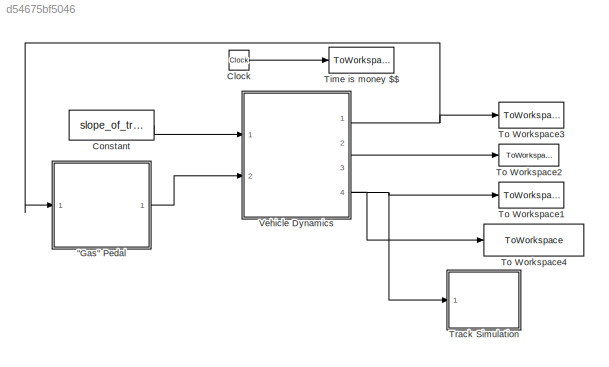
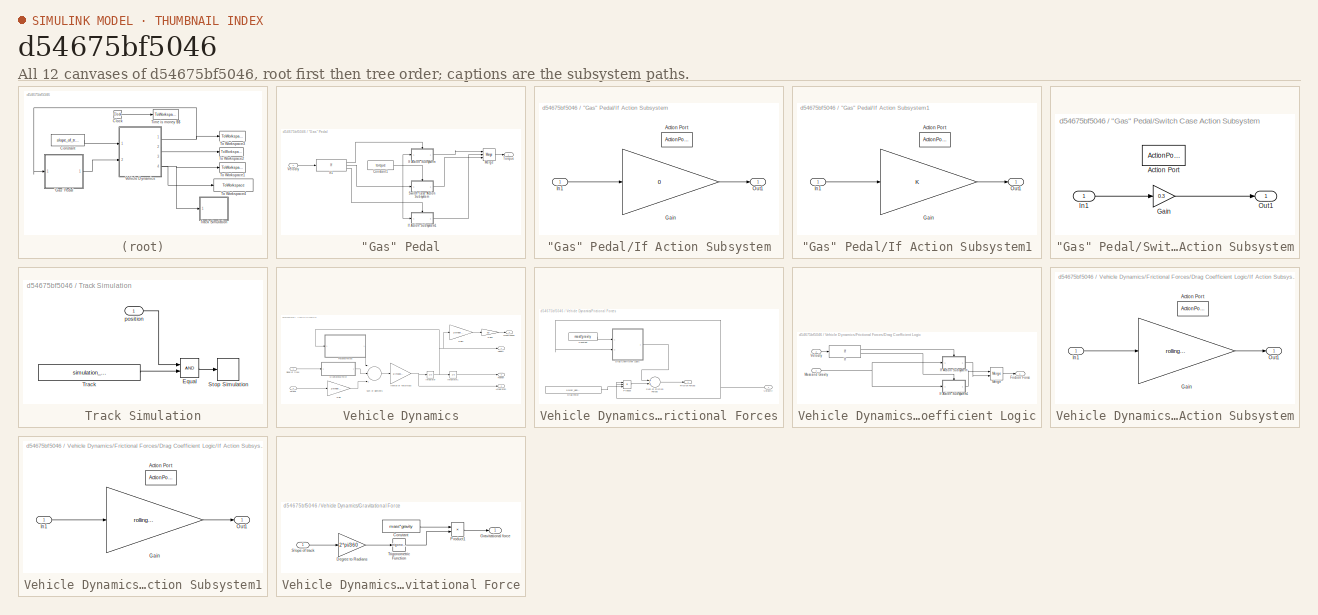
[diagram: thumbnail index - all 12 canvases of the model, root first then tree order]
MODEL slx_d54675bf5046
KIND model
CONFIG AbsTol = auto
CONFIG EnableMultiTasking = off
CONFIG FixedStep = auto
CONFIG MaxStep = 1e-04
CONFIG MinStep = auto
CONFIG RelTol = 1e-4
CONFIG SampleTimeConstraint = Unconstrained
CONFIG Solver = VariableStepAuto
CONFIG SolverName = VariableStepAuto
CONFIG StartTime = 0.0
CONFIG StopTime = 100
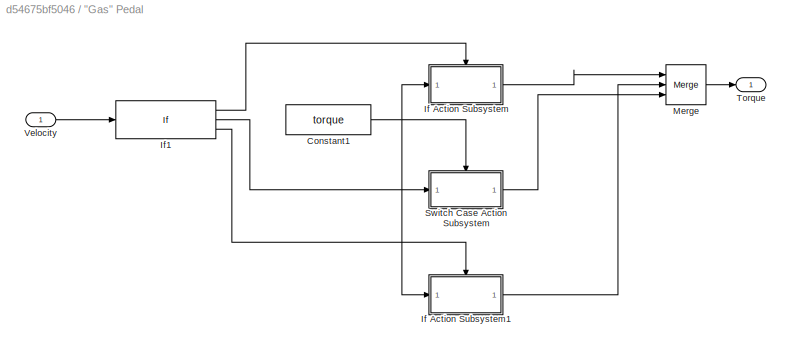
BLOCK [SubSystem] "Gas" Pedal
  Ports = [1, 1]
  RequestExecContextInheritance = off
BLOCK [Constant] "Gas" Pedal/Constant1
  Value = torque
BLOCK [SubSystem] "Gas" Pedal/If Action Subsystem
  Ports = [1, 1, 0, 0, 0, 0, 0, 1]
  RequestExecContextInheritance = off
  TreatAsAtomicUnit = on
BLOCK [ActionPort] "Gas" Pedal/If Action Subsystem/Action Port
  ActionPortLabel = if(u1 > 5.55)
BLOCK [Gain] "Gas" Pedal/If Action Subsystem/Gain
  Gain = 0
  OutDataTypeStr = Inherit: Inherit via internal rule
  ParamDataTypeStr = Inherit: Inherit via internal rule
  SaturateOnIntegerOverflow = off
BLOCK [Inport] "Gas" Pedal/If Action Subsystem/In1
  IconDisplay = Port number
BLOCK [Outport] "Gas" Pedal/If Action Subsystem/Out1
  IconDisplay = Port number
BLOCK [SubSystem] "Gas" Pedal/If Action Subsystem1
  Ports = [1, 1, 0, 0, 0, 0, 0, 1]
  RequestExecContextInheritance = off
  TreatAsAtomicUnit = on
BLOCK [ActionPort] "Gas" Pedal/If Action Subsystem1/Action Port
  ActionPortLabel = else
BLOCK [Gain] "Gas" Pedal/If Action Subsystem1/Gain
  OutDataTypeStr = Inherit: Inherit via internal rule
  ParamDataTypeStr = Inherit: Inherit via internal rule
  SaturateOnIntegerOverflow = off
BLOCK [Inport] "Gas" Pedal/If Action Subsystem1/In1
  IconDisplay = Port number
BLOCK [Outport] "Gas" Pedal/If Action Subsystem1/Out1
  IconDisplay = Port number
BLOCK [If] "Gas" Pedal/If1
  ElseIfExpressions = u1 <= 5.55
  IfExpression = u1 > 5.55
  Ports = [1, 3]
  ZeroCross = off
BLOCK [Merge] "Gas" Pedal/Merge
  Inputs = 3
  Ports = [3, 1]
BLOCK [SubSystem] "Gas" Pedal/Switch Case Action Subsystem
  Ports = [1, 1, 0, 0, 0, 0, 0, 1]
  RequestExecContextInheritance = off
  TreatAsAtomicUnit = on
BLOCK [ActionPort] "Gas" Pedal/Switch Case Action Subsystem/Action Port
BLOCK [Gain] "Gas" Pedal/Switch Case Action Subsystem/Gain
  Gain = 0.3
  OutDataTypeStr = Inherit: Inherit via internal rule
  ParamDataTypeStr = Inherit: Inherit via internal rule
  SaturateOnIntegerOverflow = off
BLOCK [Inport] "Gas" Pedal/Switch Case Action Subsystem/In1
  IconDisplay = Port number
BLOCK [Outport] "Gas" Pedal/Switch Case Action Subsystem/Out1
  IconDisplay = Port number
BLOCK [Outport] "Gas" Pedal/Torque
  IconDisplay = Port number
BLOCK [Inport] "Gas" Pedal/Velocity
  IconDisplay = Port number
BLOCK [Clock] Clock
BLOCK [Constant] Constant
  Value = slope_of_track
BLOCK [ToWorkspace] Time is money $$
  FixptAsFi = on
  MaxDataPoints = inf
  Ports = [1]
  SampleTime = -1
  VariableName = time
BLOCK [ToWorkspace] To Workspace1
  FixptAsFi = on
  MaxDataPoints = inf
  Ports = [1]
  SampleTime = -1
  VariableName = position
BLOCK [ToWorkspace] To Workspace2
  FixptAsFi = on
  MaxDataPoints = inf
  Ports = [1]
  SampleTime = -1
  VariableName = acceleration
BLOCK [ToWorkspace] To Workspace3
  FixptAsFi = on
  MaxDataPoints = inf
  Ports = [1]
  SampleTime = -1
  VariableName = velocity
BLOCK [ToWorkspace] To Workspace4
  FixptAsFi = on
  MaxDataPoints = inf
  Ports = [1]
  SampleTime = -1
  VariableName = wheel_speed_rpm
BLOCK [SubSystem] Track Simulation
  Ports = [1]
  RequestExecContextInheritance = off
BLOCK [RelationalOperator] Track Simulation/Equal
  InputSameDT = off
  OutDataTypeStr = boolean
  Ports = [2, 1]
  RndMeth = Simplest
BLOCK [Stop] Track Simulation/Stop Simulation
BLOCK [Constant] Track Simulation/Track 
  Value = simulation_length_track
BLOCK [Inport] Track Simulation/position
  IconDisplay = Port number
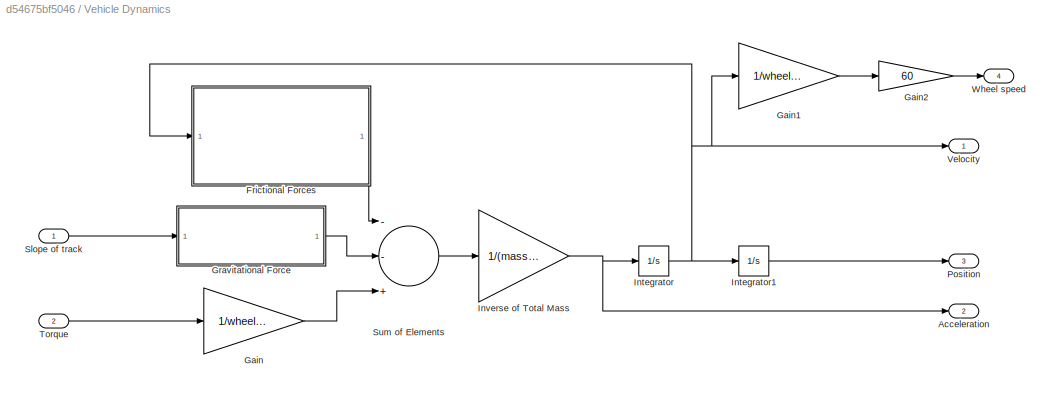
BLOCK [SubSystem] Vehicle Dynamics
  Ports = [2, 4]
  RequestExecContextInheritance = off
BLOCK [Outport] Vehicle Dynamics/Acceleration
  IconDisplay = Port number
  Port = 2
BLOCK [SubSystem] Vehicle Dynamics/Frictional Forces
  Ports = [1, 1]
  RequestExecContextInheritance = off
BLOCK [Constant] Vehicle Dynamics/Frictional Forces/Constant
  Value = mass*gravity
BLOCK [SubSystem] Vehicle Dynamics/Frictional Forces/Drag Coefficient Logic
  Ports = [2, 1]
  RequestExecContextInheritance = off
BLOCK [Outport] Vehicle Dynamics/Frictional Forces/Drag Coefficient Logic/Friction Force
  IconDisplay = Port number
BLOCK [If] Vehicle Dynamics/Frictional Forces/Drag Coefficient Logic/If
  IfExpression = u1 > 0.01
  Ports = [1, 2]
BLOCK [SubSystem] Vehicle Dynamics/Frictional Forces/Drag Coefficient Logic/If Action Subsystem
  Ports = [1, 1, 0, 0, 0, 0, 0, 1]
  RequestExecContextInheritance = off
  TreatAsAtomicUnit = on
BLOCK [ActionPort] Vehicle Dynamics/Frictional Forces/Drag Coefficient Logic/If Action Subsystem/Action Port
  ActionPortLabel = if(u1 > 0.01)
BLOCK [Gain] Vehicle Dynamics/Frictional Forces/Drag Coefficient Logic/If Action Subsystem/Gain
  Gain = rolling_resistance_coefficient_1
  OutDataTypeStr = Inherit: Inherit via internal rule
  ParamDataTypeStr = Inherit: Inherit via internal rule
  SaturateOnIntegerOverflow = off
BLOCK [Inport] Vehicle Dynamics/Frictional Forces/Drag Coefficient Logic/If Action Subsystem/In1
  IconDisplay = Port number
BLOCK [Outport] Vehicle Dynamics/Frictional Forces/Drag Coefficient Logic/If Action Subsystem/Out1
  IconDisplay = Port number
BLOCK [SubSystem] Vehicle Dynamics/Frictional Forces/Drag Coefficient Logic/If Action Subsystem1
  Ports = [1, 1, 0, 0, 0, 0, 0, 1]
  RequestExecContextInheritance = off
  TreatAsAtomicUnit = on
BLOCK [ActionPort] Vehicle Dynamics/Frictional Forces/Drag Coefficient Logic/If Action Subsystem1/Action Port
  ActionPortLabel = else
BLOCK [Gain] Vehicle Dynamics/Frictional Forces/Drag Coefficient Logic/If Action Subsystem1/Gain
  Gain = rolling_resistance_coefficient_0
  OutDataTypeStr = Inherit: Inherit via internal rule
  ParamDataTypeStr = Inherit: Inherit via internal rule
  SaturateOnIntegerOverflow = off
BLOCK [Inport] Vehicle Dynamics/Frictional Forces/Drag Coefficient Logic/If Action Subsystem1/In1
  IconDisplay = Port number
BLOCK [Outport] Vehicle Dynamics/Frictional Forces/Drag Coefficient Logic/If Action Subsystem1/Out1
  IconDisplay = Port number
BLOCK [Inport] Vehicle Dynamics/Frictional Forces/Drag Coefficient Logic/Mass and Gravity 
  IconDisplay = Port number
BLOCK [Merge] Vehicle Dynamics/Frictional Forces/Drag Coefficient Logic/Merge
  Ports = [2, 1]
BLOCK [Inport] Vehicle Dynamics/Frictional Forces/Drag Coefficient Logic/Velocity
  IconDisplay = Port number
  Port = 2
BLOCK [Constant] Vehicle Dynamics/Frictional Forces/Drag Force
  Value = 0.5*air_density*surface_area*drag_coefficient
BLOCK [Outport] Vehicle Dynamics/Frictional Forces/Firction Forces
  IconDisplay = Port number
BLOCK [Product] Vehicle Dynamics/Frictional Forces/Product
  InputSameDT = off
  Inputs = 3
  OutDataTypeStr = Inherit: Inherit via internal rule
  Ports = [3, 1]
  RndMeth = Floor
  SaturateOnIntegerOverflow = off
BLOCK [Sum] Vehicle Dynamics/Frictional Forces/Sum of Friction Forces
  InputSameDT = off
  OutDataTypeStr = Inherit: Inherit via internal rule
  Ports = [2, 1]
  SaturateOnIntegerOverflow = off
BLOCK [Inport] Vehicle Dynamics/Frictional Forces/Velocity
  IconDisplay = Port number
BLOCK [Gain] Vehicle Dynamics/Gain
  Gain = 1/wheel_radius
  OutDataTypeStr = Inherit: Inherit via internal rule
  ParamDataTypeStr = Inherit: Inherit via internal rule
  SaturateOnIntegerOverflow = off
BLOCK [Gain] Vehicle Dynamics/Gain1
  Gain = 1/wheel_radius
  OutDataTypeStr = Inherit: Inherit via internal rule
  ParamDataTypeStr = Inherit: Inherit via internal rule
  SaturateOnIntegerOverflow = off
BLOCK [Gain] Vehicle Dynamics/Gain2
  Gain = 60
  OutDataTypeStr = Inherit: Inherit via internal rule
  ParamDataTypeStr = Inherit: Inherit via internal rule
  SaturateOnIntegerOverflow = off
BLOCK [SubSystem] Vehicle Dynamics/Gravitational Force
  Ports = [1, 1]
  RequestExecContextInheritance = off
BLOCK [Constant] Vehicle Dynamics/Gravitational Force/Constant
  Value = mass*gravity
BLOCK [Gain] Vehicle Dynamics/Gravitational Force/Degree to Radians
  Gain = 2*pi/360
  OutDataTypeStr = Inherit: Inherit via internal rule
  ParamDataTypeStr = Inherit: Inherit via internal rule
  SaturateOnIntegerOverflow = off
BLOCK [Outport] Vehicle Dynamics/Gravitational Force/Gravitational force
  IconDisplay = Port number
BLOCK [Product] Vehicle Dynamics/Gravitational Force/Product1
  InputSameDT = off
  OutDataTypeStr = Inherit: Inherit via internal rule
  Ports = [2, 1]
  RndMeth = Floor
  SaturateOnIntegerOverflow = off
BLOCK [Inport] Vehicle Dynamics/Gravitational Force/Slope of track
  IconDisplay = Port number
BLOCK [Trigonometry] Vehicle Dynamics/Gravitational Force/Trigonometric Function
  Ports = [1, 1]
BLOCK [Integrator] Vehicle Dynamics/Integrator
  Ports = [1, 1]
BLOCK [Integrator] Vehicle Dynamics/Integrator1
  Ports = [1, 1]
BLOCK [Gain] Vehicle Dynamics/Inverse of Total Mass
  Gain = 1/(mass+equ_mass_of_rot_parts)
  OutDataTypeStr = Inherit: Inherit via internal rule
  ParamDataTypeStr = Inherit: Inherit via internal rule
  SaturateOnIntegerOverflow = off
BLOCK [Outport] Vehicle Dynamics/Position
  IconDisplay = Port number
  Port = 3
BLOCK [Inport] Vehicle Dynamics/Slope of track 
  IconDisplay = Port number
BLOCK [Sum] Vehicle Dynamics/Sum of Elements
  InputSameDT = off
  Inputs = --+
  OutDataTypeStr = Inherit: Inherit via internal rule
  Ports = [3, 1]
  SaturateOnIntegerOverflow = off
BLOCK [Inport] Vehicle Dynamics/Torque
  IconDisplay = Port number
  Port = 2
BLOCK [Outport] Vehicle Dynamics/Velocity
  IconDisplay = Port number
BLOCK [Outport] Vehicle Dynamics/Wheel speed
  IconDisplay = Port number
  Port = 4
NET "Gas" Pedal/Constant1:1 -> "Gas" Pedal/If Action Subsystem1:1, "Gas" Pedal/If Action Subsystem:1, "Gas" Pedal/Switch Case Action Subsystem:ifaction
LINE "Gas" Pedal/If Action Subsystem/Gain:1 -> "Gas" Pedal/If Action Subsystem/Out1:1
LINE "Gas" Pedal/If Action Subsystem/In1:1 -> "Gas" Pedal/If Action Subsystem/Gain:1
LINE "Gas" Pedal/If Action Subsystem1/Gain:1 -> "Gas" Pedal/If Action Subsystem1/Out1:1
LINE "Gas" Pedal/If Action Subsystem1/In1:1 -> "Gas" Pedal/If Action Subsystem1/Gain:1
LINE "Gas" Pedal/If Action Subsystem1:1 -> "Gas" Pedal/Merge:2
LINE "Gas" Pedal/If Action Subsystem:1 -> "Gas" Pedal/Merge:1
LINE "Gas" Pedal/If1:1 -> "Gas" Pedal/If Action Subsystem:ifaction
LINE "Gas" Pedal/If1:2 -> "Gas" Pedal/Switch Case Action Subsystem:1
LINE "Gas" Pedal/If1:3 -> "Gas" Pedal/If Action Subsystem1:ifaction
LINE "Gas" Pedal/Merge:1 -> "Gas" Pedal/Torque:1
LINE "Gas" Pedal/Switch Case Action Subsystem/Gain:1 -> "Gas" Pedal/Switch Case Action Subsystem/Out1:1
LINE "Gas" Pedal/Switch Case Action Subsystem/In1:1 -> "Gas" Pedal/Switch Case Action Subsystem/Gain:1
LINE "Gas" Pedal/Switch Case Action Subsystem:1 -> "Gas" Pedal/Merge:3
LINE "Gas" Pedal/Velocity:1 -> "Gas" Pedal/If1:1
LINE "Gas" Pedal:1 -> Vehicle Dynamics:2
LINE Clock:1 -> Time is money $$:1
LINE Constant:1 -> Vehicle Dynamics:1
LINE Track Simulation/Equal:1 -> Track Simulation/Stop Simulation:1
LINE Track Simulation/Track :1 -> Track Simulation/Equal:2
LINE Track Simulation/position:1 -> Track Simulation/Equal:1
LINE Vehicle Dynamics/Frictional Forces/Constant:1 -> Vehicle Dynamics/Frictional Forces/Drag Coefficient Logic:1
LINE Vehicle Dynamics/Frictional Forces/Drag Coefficient Logic/If Action Subsystem/Gain:1 -> Vehicle Dynamics/Frictional Forces/Drag Coefficient Logic/If Action Subsystem/Out1:1
LINE Vehicle Dynamics/Frictional Forces/Drag Coefficient Logic/If Action Subsystem/In1:1 -> Vehicle Dynamics/Frictional Forces/Drag Coefficient Logic/If Action Subsystem/Gain:1
LINE Vehicle Dynamics/Frictional Forces/Drag Coefficient Logic/If Action Subsystem1/Gain:1 -> Vehicle Dynamics/Frictional Forces/Drag Coefficient Logic/If Action Subsystem1/Out1:1
LINE Vehicle Dynamics/Frictional Forces/Drag Coefficient Logic/If Action Subsystem1/In1:1 -> Vehicle Dynamics/Frictional Forces/Drag Coefficient Logic/If Action Subsystem1/Gain:1
LINE Vehicle Dynamics/Frictional Forces/Drag Coefficient Logic/If Action Subsystem1:1 -> Vehicle Dynamics/Frictional Forces/Drag Coefficient Logic/Merge:1
LINE Vehicle Dynamics/Frictional Forces/Drag Coefficient Logic/If Action Subsystem:1 -> Vehicle Dynamics/Frictional Forces/Drag Coefficient Logic/Merge:2
LINE Vehicle Dynamics/Frictional Forces/Drag Coefficient Logic/If:1 -> Vehicle Dynamics/Frictional Forces/Drag Coefficient Logic/If Action Subsystem:ifaction
LINE Vehicle Dynamics/Frictional Forces/Drag Coefficient Logic/If:2 -> Vehicle Dynamics/Frictional Forces/Drag Coefficient Logic/If Action Subsystem1:ifaction
NET Vehicle Dynamics/Frictional Forces/Drag Coefficient Logic/Mass and Gravity :1 -> Vehicle Dynamics/Frictional Forces/Drag Coefficient Logic/If Action Subsystem1:1, Vehicle Dynamics/Frictional Forces/Drag Coefficient Logic/If Action Subsystem:1
LINE Vehicle Dynamics/Frictional Forces/Drag Coefficient Logic/Merge:1 -> Vehicle Dynamics/Frictional Forces/Drag Coefficient Logic/Friction Force:1
LINE Vehicle Dynamics/Frictional Forces/Drag Coefficient Logic/Velocity:1 -> Vehicle Dynamics/Frictional Forces/Drag Coefficient Logic/If:1
LINE Vehicle Dynamics/Frictional Forces/Drag Coefficient Logic:1 -> Vehicle Dynamics/Frictional Forces/Sum of Friction Forces:1
LINE Vehicle Dynamics/Frictional Forces/Drag Force:1 -> Vehicle Dynamics/Frictional Forces/Product:3
LINE Vehicle Dynamics/Frictional Forces/Product:1 -> Vehicle Dynamics/Frictional Forces/Sum of Friction Forces:2
LINE Vehicle Dynamics/Frictional Forces/Sum of Friction Forces:1 -> Vehicle Dynamics/Frictional Forces/Firction Forces:1
NET Vehicle Dynamics/Frictional Forces/Velocity:1 -> Vehicle Dynamics/Frictional Forces/Drag Coefficient Logic:2, Vehicle Dynamics/Frictional Forces/Product:1, Vehicle Dynamics/Frictional Forces/Product:2
LINE Vehicle Dynamics/Frictional Forces:1 -> Vehicle Dynamics/Sum of Elements:1
LINE Vehicle Dynamics/Gain1:1 -> Vehicle Dynamics/Gain2:1
LINE Vehicle Dynamics/Gain2:1 -> Vehicle Dynamics/Wheel speed:1
LINE Vehicle Dynamics/Gain:1 -> Vehicle Dynamics/Sum of Elements:3
LINE Vehicle Dynamics/Gravitational Force/Constant:1 -> Vehicle Dynamics/Gravitational Force/Product1:1
LINE Vehicle Dynamics/Gravitational Force/Degree to Radians:1 -> Vehicle Dynamics/Gravitational Force/Trigonometric Function:1
LINE Vehicle Dynamics/Gravitational Force/Product1:1 -> Vehicle Dynamics/Gravitational Force/Gravitational force:1
LINE Vehicle Dynamics/Gravitational Force/Slope of track:1 -> Vehicle Dynamics/Gravitational Force/Degree to Radians:1
LINE Vehicle Dynamics/Gravitational Force/Trigonometric Function:1 -> Vehicle Dynamics/Gravitational Force/Product1:2
LINE Vehicle Dynamics/Gravitational Force:1 -> Vehicle Dynamics/Sum of Elements:2
LINE Vehicle Dynamics/Integrator1:1 -> Vehicle Dynamics/Position:1
NET Vehicle Dynamics/Integrator:1 -> Vehicle Dynamics/Frictional Forces:1, Vehicle Dynamics/Gain1:1, Vehicle Dynamics/Integrator1:1, Vehicle Dynamics/Velocity:1
NET Vehicle Dynamics/Inverse of Total Mass:1 -> Vehicle Dynamics/Acceleration:1, Vehicle Dynamics/Integrator:1
LINE Vehicle Dynamics/Slope of track :1 -> Vehicle Dynamics/Gravitational Force:1
LINE Vehicle Dynamics/Sum of Elements:1 -> Vehicle Dynamics/Inverse of Total Mass:1
LINE Vehicle Dynamics/Torque:1 -> Vehicle Dynamics/Gain:1
NET Vehicle Dynamics:1 -> "Gas" Pedal:1, To Workspace3:1
LINE Vehicle Dynamics:2 -> To Workspace2:1
NET Vehicle Dynamics:3 -> To Workspace1:1, Track Simulation:1
LINE Vehicle Dynamics:4 -> To Workspace4:1
note: NET lines group one-source signal fan-out (src -> all destinations, sorted); 1:1 wires keep LINE
